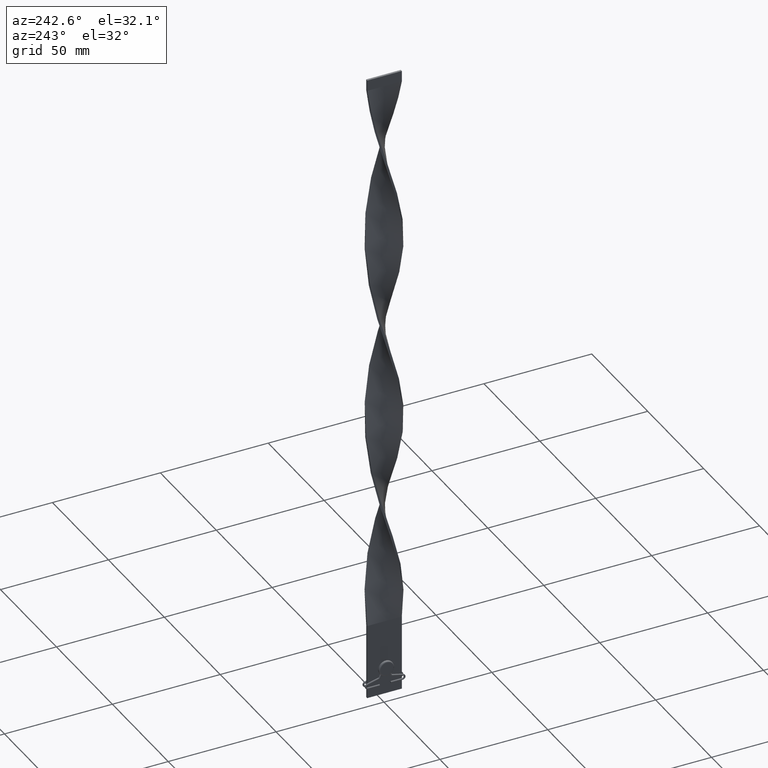
[diagram: clean part render]
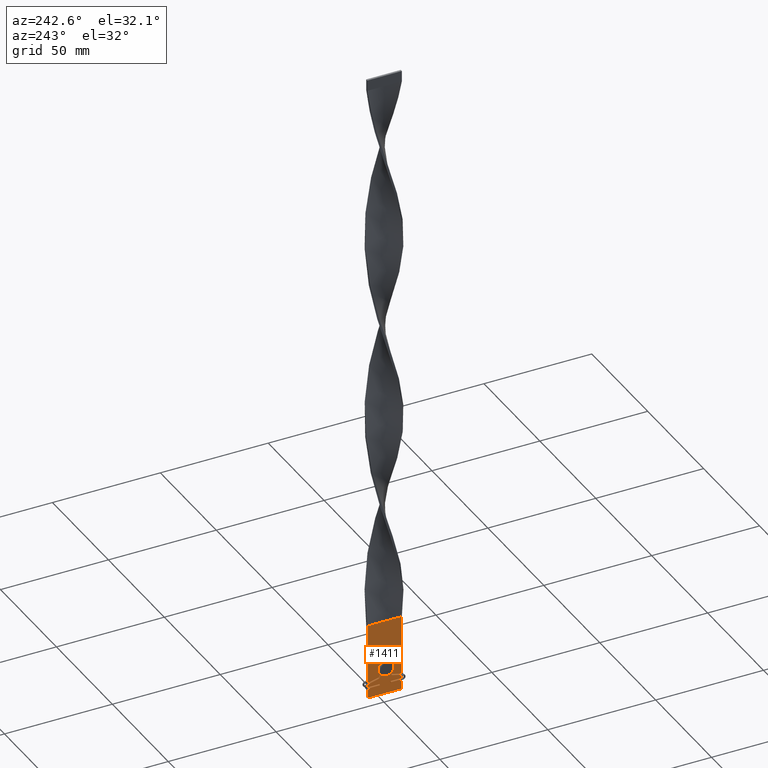
[diagram: same view with one face highlighted and labeled with its STEP entity id]
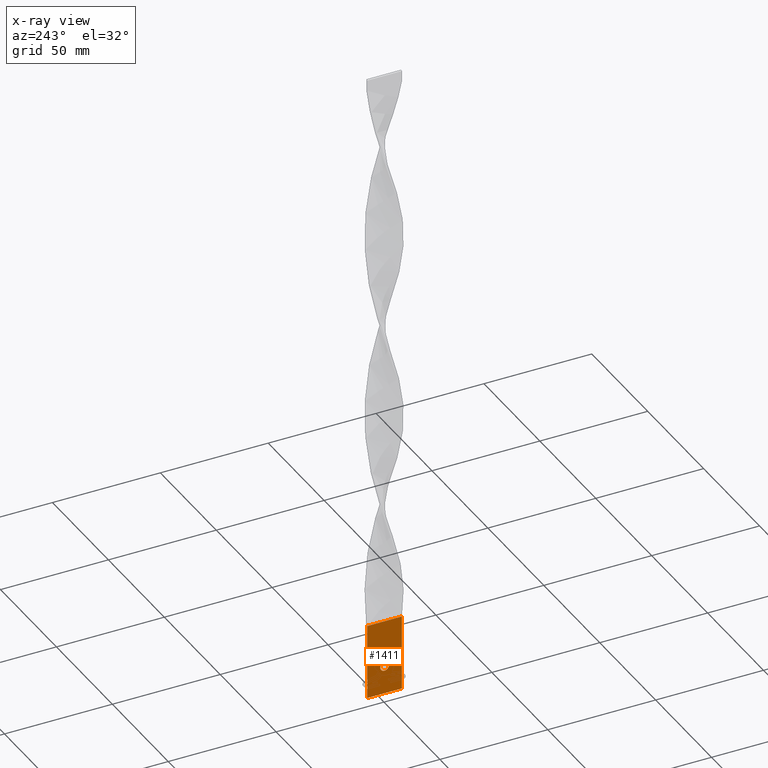
[diagram: x-ray of the same camera — body ghosted, the highlighted face saturated]
A machine part, auxiliary view. The second image highlights one B-rep face of the part: STEP entity #1411.
The next image is the same camera in x-ray: the body ghosted, the highlighted face saturated — about 0% of this face is hidden behind the body in this view.
In plain terms, the highlighted planar face has unit normal (1, 0, -0).
Its self-contained STEP definition (entity closure, byte-faithful):
#60 = EDGE_CURVE ( 'NONE', #2497, #1701, #4039, .T. ) ;
#157 = ORIENTED_EDGE ( 'NONE', *, *, #3651, .F. ) ;
#188 = EDGE_LOOP ( 'NONE', ( #193, #4471 ) ) ;
#193 = ORIENTED_EDGE ( 'NONE', *, *, #2575, .F. ) ;
#223 = ORIENTED_EDGE ( 'NONE', *, *, #4350, .T. ) ;
#352 = ORIENTED_EDGE ( 'NONE', *, *, #60, .F. ) ;
#360 = ORIENTED_EDGE ( 'NONE', *, *, #2798, .T. ) ;
#432 = CARTESIAN_POINT ( 'NONE',  ( -0.4999999999999989453, -8.000000000000001776, 35.00000000000000000 ) ) ;
#499 = DIRECTION ( 'NONE',  ( 1.219727444046192488E-16, -1.000000000000000000, 0.000000000000000000 ) ) ;
#530 = VECTOR ( 'NONE', #3721, 1000.000000000000000 ) ;
#586 = AXIS2_PLACEMENT_3D ( 'NONE', #3233, #651, #2825 ) ;
#619 = EDGE_LOOP ( 'NONE', ( #360, #157, #352, #223 ) ) ;
#651 = DIRECTION ( 'NONE',  ( 1.000000000000000000, 1.219727444046192735E-16, -0.000000000000000000 ) ) ;
#707 = EDGE_CURVE ( 'NONE', #3055, #856, #894, .T. ) ;
#856 = VERTEX_POINT ( 'NONE', #2682 ) ;
#865 = LINE ( 'NONE', #1202, #3488 ) ;
#894 = CIRCLE ( 'NONE', #2412, 1.999999999999999556 ) ;
#983 = AXIS2_PLACEMENT_3D ( 'NONE', #3253, #2991, #4368 ) ;
#1202 = CARTESIAN_POINT ( 'NONE',  ( -0.5000000000000008882, 7.999999999999998224, 0.000000000000000000 ) ) ;
#1411 = ADVANCED_FACE ( 'NONE', ( #3956, #4704 ), #2463, .F. ) ;
#1701 = VERTEX_POINT ( 'NONE', #432 ) ;
#1802 = LINE ( 'NONE', #4127, #4041 ) ;
#1888 = VERTEX_POINT ( 'NONE', #2603 ) ;
#2262 = CARTESIAN_POINT ( 'NONE',  ( -0.5000000000000008882, 7.999999999999998224, 35.00000000000000000 ) ) ;
#2412 = AXIS2_PLACEMENT_3D ( 'NONE', #3345, #2941, #4116 ) ;
#2463 = PLANE ( 'NONE',  #586 ) ;
#2497 = VERTEX_POINT ( 'NONE', #2899 ) ;
#2549 = DIRECTION ( 'NONE',  ( -0.000000000000000000, -0.000000000000000000, -1.000000000000000000 ) ) ;
#2575 = EDGE_CURVE ( 'NONE', #856, #3055, #3482, .T. ) ;
#2603 = CARTESIAN_POINT ( 'NONE',  ( -0.5000000000000008882, 7.999999999999998224, 0.000000000000000000 ) ) ;
#2682 = CARTESIAN_POINT ( 'NONE',  ( -0.4999999999999997780, -1.999999999999999556, 13.00000000000000000 ) ) ;
#2798 = EDGE_CURVE ( 'NONE', #1888, #4367, #865, .T. ) ;
#2825 = DIRECTION ( 'NONE',  ( -1.219727444046192735E-16, 1.000000000000000000, 0.000000000000000000 ) ) ;
#2831 = CARTESIAN_POINT ( 'NONE',  ( -0.5000000000000002220, 1.999999999999999556, 13.00000000000000000 ) ) ;
#2899 = CARTESIAN_POINT ( 'NONE',  ( -0.5000000000000008882, 7.999999999999998224, 35.00000000000000000 ) ) ;
#2941 = DIRECTION ( 'NONE',  ( -1.000000000000000000, -1.219727444046192735E-16, 0.000000000000000000 ) ) ;
#2991 = DIRECTION ( 'NONE',  ( -1.000000000000000000, -1.219727444046192735E-16, 0.000000000000000000 ) ) ;
#3055 = VERTEX_POINT ( 'NONE', #2831 ) ;
#3104 = VECTOR ( 'NONE', #3248, 1000.000000000000000 ) ;
#3233 = CARTESIAN_POINT ( 'NONE',  ( -0.5000000000000008882, 7.999999999999998224, 35.00000000000000000 ) ) ;
#3248 = DIRECTION ( 'NONE',  ( 1.219727444046192488E-16, -1.000000000000000000, 0.000000000000000000 ) ) ;
#3253 = CARTESIAN_POINT ( 'NONE',  ( -0.5000000000000000000, 6.098637220230962441E-17, 13.00000000000000000 ) ) ;
#3299 = LINE ( 'NONE', #2262, #530 ) ;
#3345 = CARTESIAN_POINT ( 'NONE',  ( -0.5000000000000000000, 6.098637220230962441E-17, 13.00000000000000000 ) ) ;
#3365 = CARTESIAN_POINT ( 'NONE',  ( -0.4999999999999989453, -8.000000000000001776, 0.000000000000000000 ) ) ;
#3482 = CIRCLE ( 'NONE', #983, 1.999999999999999556 ) ;
#3488 = VECTOR ( 'NONE', #499, 1000.000000000000000 ) ;
#3651 = EDGE_CURVE ( 'NONE', #1701, #4367, #1802, .T. ) ;
#3673 = CARTESIAN_POINT ( 'NONE',  ( -0.5000000000000008882, 7.999999999999998224, 35.00000000000000000 ) ) ;
#3721 = DIRECTION ( 'NONE',  ( -0.000000000000000000, -0.000000000000000000, -1.000000000000000000 ) ) ;
#3956 = FACE_BOUND ( 'NONE', #188, .T. ) ;
#4039 = LINE ( 'NONE', #3673, #3104 ) ;
#4041 = VECTOR ( 'NONE', #2549, 1000.000000000000000 ) ;
#4116 = DIRECTION ( 'NONE',  ( -1.084202172485504681E-16, 1.000000000000000000, 0.000000000000000000 ) ) ;
#4127 = CARTESIAN_POINT ( 'NONE',  ( -0.4999999999999989453, -8.000000000000001776, 35.00000000000000000 ) ) ;
#4350 = EDGE_CURVE ( 'NONE', #2497, #1888, #3299, .T. ) ;
#4367 = VERTEX_POINT ( 'NONE', #3365 ) ;
#4368 = DIRECTION ( 'NONE',  ( -1.084202172485504681E-16, 1.000000000000000000, 0.000000000000000000 ) ) ;
#4471 = ORIENTED_EDGE ( 'NONE', *, *, #707, .F. ) ;
#4704 = FACE_OUTER_BOUND ( 'NONE', #619, .T. ) ;